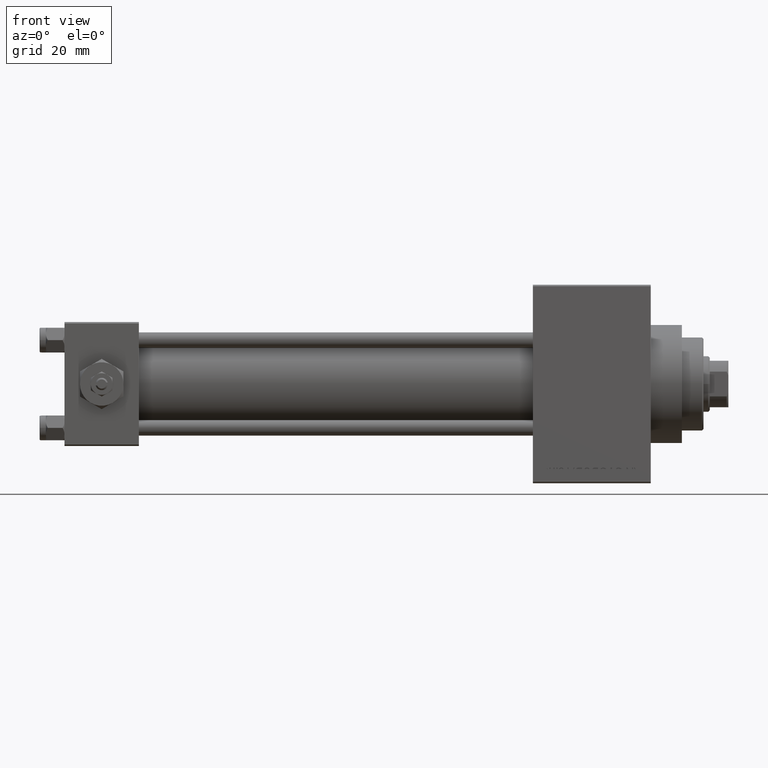
[diagram: clean part render]
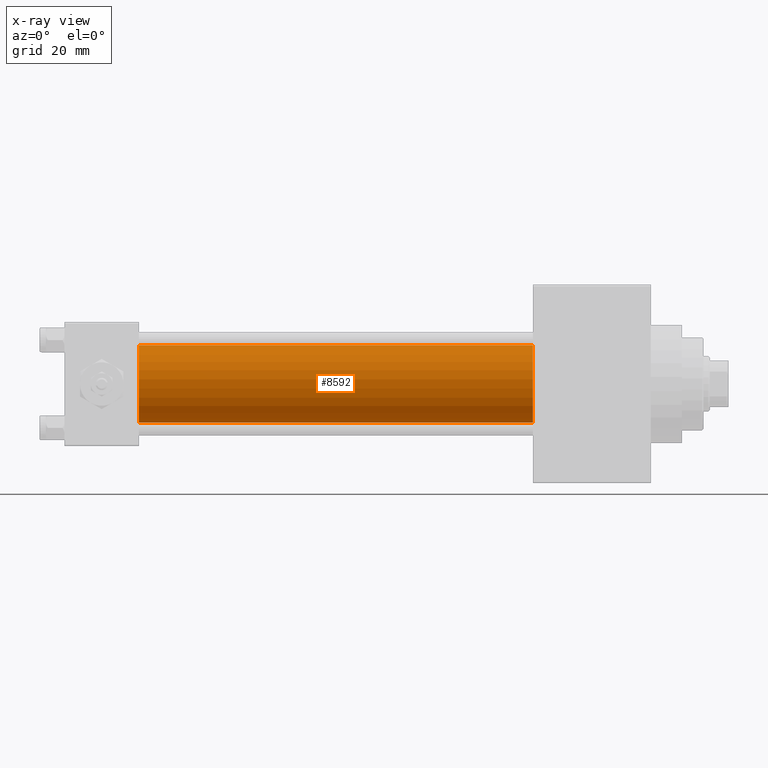
[diagram: x-ray — body ghosted, one internal face saturated and labeled with its STEP entity id]
A machine part, front view, then the same camera in x-ray: the body is ghosted and one INTERNAL B-rep face — a face not visible from any outside direction — is saturated and labeled: STEP entity #8592.
In plain terms, the highlighted cylindrical surface (partial cylindrical patch) has radius 12.5 mm, axis along (-1, -0, -0).
Its self-contained STEP definition (entity closure, byte-faithful):
#113 = AXIS2_PLACEMENT_3D ( 'NONE', #12967, #20853, #16655 ) ;
#460 = CARTESIAN_POINT ( 'NONE',  ( 151.0000000000000000, -1.071276715031019515E-15, -12.49999999999999645 ) ) ;
#2471 = CIRCLE ( 'NONE', #113, 12.49999999999999645 ) ;
#2938 = AXIS2_PLACEMENT_3D ( 'NONE', #5514, #20529, #25224 ) ;
#5133 = CARTESIAN_POINT ( 'NONE',  ( 24.00000000000000000, -1.071276715031019515E-15, -12.49999999999999645 ) ) ;
#5204 = EDGE_LOOP ( 'NONE', ( #27041, #33780, #20135, #13425 ) ) ;
#5514 = CARTESIAN_POINT ( 'NONE',  ( 24.00000000000000000, -2.602085213965210642E-15, 0.000000000000000000 ) ) ;
#7987 = VERTEX_POINT ( 'NONE', #5133 ) ;
#8050 = EDGE_CURVE ( 'NONE', #46689, #7987, #8347, .T. ) ;
#8347 = LINE ( 'NONE', #34734, #22601 ) ;
#8592 = ADVANCED_FACE ( 'NONE', ( #29909 ), #48399, .F. ) ;
#10830 = LINE ( 'NONE', #22659, #41665 ) ;
#11008 = EDGE_CURVE ( 'NONE', #46362, #7987, #24180, .T. ) ;
#12967 = CARTESIAN_POINT ( 'NONE',  ( 151.0000000000000000, -2.602085213965210642E-15, 0.000000000000000000 ) ) ;
#13425 = ORIENTED_EDGE ( 'NONE', *, *, #35680, .F. ) ;
#16655 = DIRECTION ( 'NONE',  ( 0.000000000000000000, 0.000000000000000000, -1.000000000000000000 ) ) ;
#18541 = CARTESIAN_POINT ( 'NONE',  ( 151.0000000000000000, -2.602085213965210642E-15, 0.000000000000000000 ) ) ;
#20135 = ORIENTED_EDGE ( 'NONE', *, *, #11008, .F. ) ;
#20529 = DIRECTION ( 'NONE',  ( 1.000000000000000000, 0.000000000000000000, 0.000000000000000000 ) ) ;
#20853 = DIRECTION ( 'NONE',  ( 1.000000000000000000, 0.000000000000000000, 0.000000000000000000 ) ) ;
#22601 = VECTOR ( 'NONE', #42371, 1000.000000000000000 ) ;
#22659 = CARTESIAN_POINT ( 'NONE',  ( 151.0000000000000000, -2.602085213965210642E-15, 12.49999999999999645 ) ) ;
#24180 = CIRCLE ( 'NONE', #2938, 12.49999999999999645 ) ;
#24842 = EDGE_CURVE ( 'NONE', #25432, #46689, #2471, .T. ) ;
#25224 = DIRECTION ( 'NONE',  ( 0.000000000000000000, 0.000000000000000000, -1.000000000000000000 ) ) ;
#25432 = VERTEX_POINT ( 'NONE', #38037 ) ;
#27041 = ORIENTED_EDGE ( 'NONE', *, *, #24842, .T. ) ;
#29909 = FACE_OUTER_BOUND ( 'NONE', #5204, .T. ) ;
#33780 = ORIENTED_EDGE ( 'NONE', *, *, #8050, .T. ) ;
#34734 = CARTESIAN_POINT ( 'NONE',  ( 151.0000000000000000, -1.071276715031019515E-15, -12.49999999999999645 ) ) ;
#35680 = EDGE_CURVE ( 'NONE', #25432, #46362, #10830, .T. ) ;
#35862 = CARTESIAN_POINT ( 'NONE',  ( 24.00000000000000000, -2.602085213965210642E-15, 12.49999999999999645 ) ) ;
#37713 = DIRECTION ( 'NONE',  ( -1.000000000000000000, -0.000000000000000000, -0.000000000000000000 ) ) ;
#38037 = CARTESIAN_POINT ( 'NONE',  ( 151.0000000000000000, -2.602085213965210642E-15, 12.49999999999999645 ) ) ;
#41665 = VECTOR ( 'NONE', #37713, 1000.000000000000000 ) ;
#42371 = DIRECTION ( 'NONE',  ( -1.000000000000000000, -0.000000000000000000, -0.000000000000000000 ) ) ;
#44951 = DIRECTION ( 'NONE',  ( 0.000000000000000000, 0.000000000000000000, 1.000000000000000000 ) ) ;
#46362 = VERTEX_POINT ( 'NONE', #35862 ) ;
#46689 = VERTEX_POINT ( 'NONE', #460 ) ;
#47850 = AXIS2_PLACEMENT_3D ( 'NONE', #18541, #47914, #44951 ) ;
#47914 = DIRECTION ( 'NONE',  ( -1.000000000000000000, -0.000000000000000000, -0.000000000000000000 ) ) ;
#48399 = CYLINDRICAL_SURFACE ( 'NONE', #47850, 12.49999999999999645 ) ;